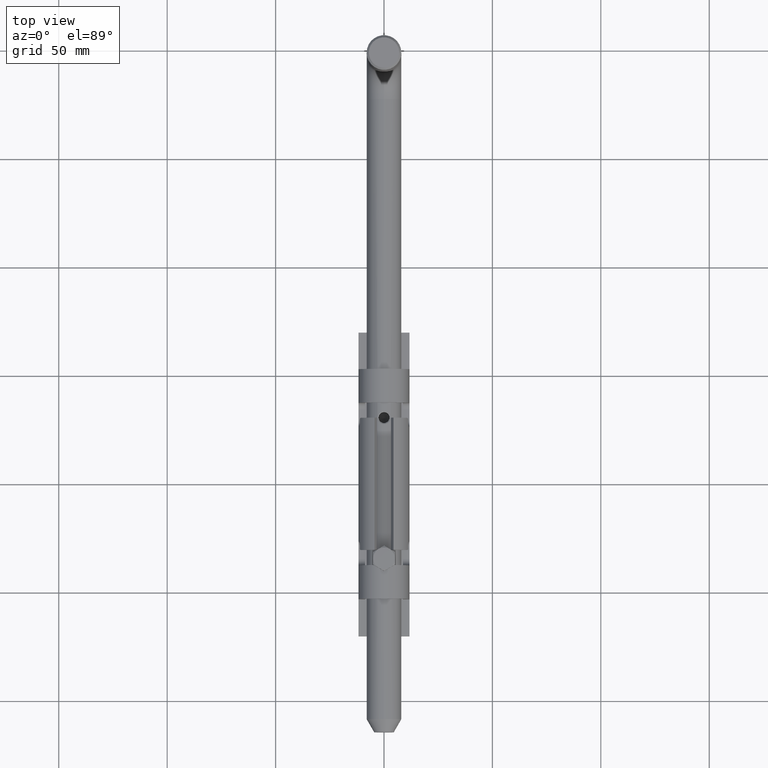
[diagram: clean part render]
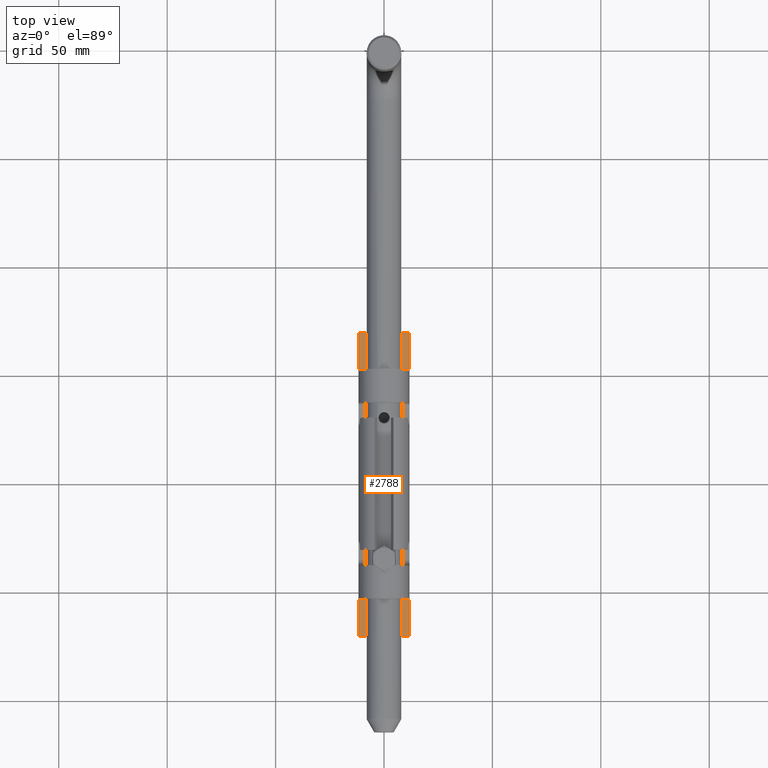
[diagram: same view with one face highlighted and labeled with its STEP entity id]
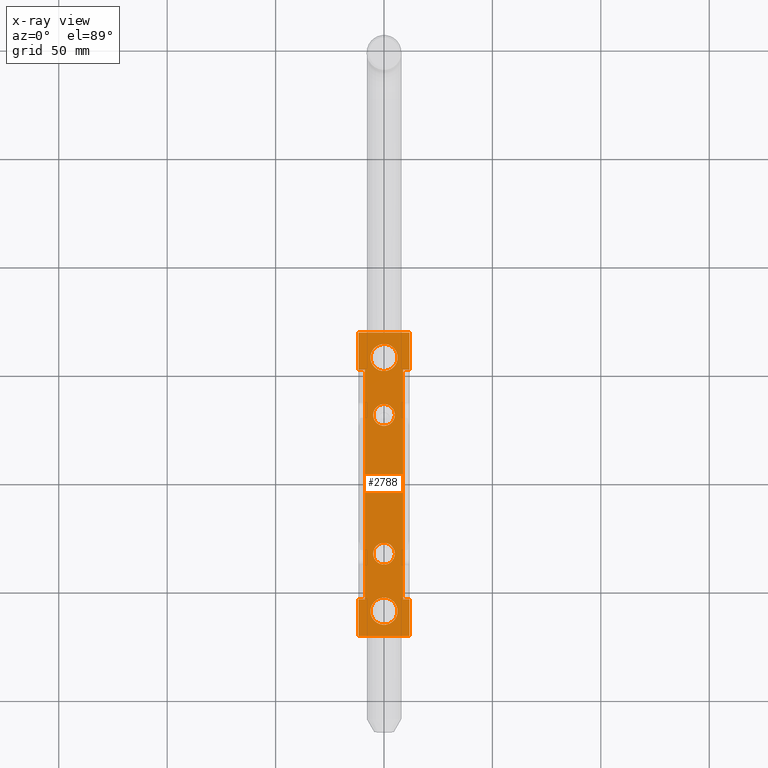
[diagram: x-ray of the same camera — body ghosted, the highlighted face saturated]
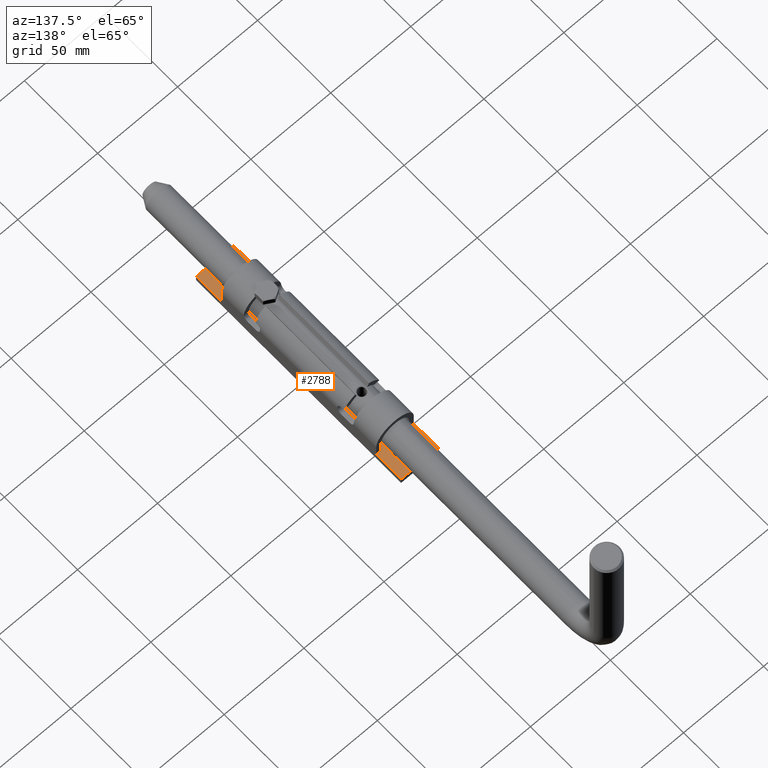
[diagram: same view with one face highlighted and labeled with its STEP entity id]
A machine part, top view. The second image highlights one B-rep face of the part: STEP entity #2788.
The next image is the same camera in x-ray: the body ghosted, the highlighted face saturated — about 0% of this face is hidden behind the body in this view.
A second angle (auxiliary view) of the same face is appended — the face is thin or edge-on in the first view.
In plain terms, the highlighted planar face has unit normal (0, 0, 1).
Its self-contained STEP definition (entity closure, byte-faithful):
#36 = VERTEX_POINT ( 'NONE', #11404 ) ;
#194 = CARTESIAN_POINT ( 'NONE',  ( 8.749999999999994671, -53.00000000000000000, 2.000000000000001776 ) ) ;
#560 = DIRECTION ( 'NONE',  ( 0.000000000000000000, 1.000000000000000000, 0.000000000000000000 ) ) ;
#983 = VECTOR ( 'NONE', #14760, 1000.000000000000000 ) ;
#1285 = CARTESIAN_POINT ( 'NONE',  ( -8.750000000000007105, -53.00000000000000000, 2.000000000000001776 ) ) ;
#1510 = DIRECTION ( 'NONE',  ( 0.000000000000000000, -1.000000000000000000, 0.000000000000000000 ) ) ;
#1623 = CIRCLE ( 'NONE', #12839, 5.000000000000030198 ) ;
#1718 = VERTEX_POINT ( 'NONE', #1285 ) ;
#1848 = VECTOR ( 'NONE', #6295, 1000.000000000000000 ) ;
#1854 = VECTOR ( 'NONE', #12934, 1000.000000000000000 ) ;
#2197 = CARTESIAN_POINT ( 'NONE',  ( 11.74999999999999112, 70.00000000000000000, 2.000000000000001776 ) ) ;
#2201 = ORIENTED_EDGE ( 'NONE', *, *, #12070, .T. ) ;
#2304 = CARTESIAN_POINT ( 'NONE',  ( -11.75000000000000888, 70.00000000000000000, 2.000000000000001776 ) ) ;
#2343 = ORIENTED_EDGE ( 'NONE', *, *, #2805, .T. ) ;
#2444 = CARTESIAN_POINT ( 'NONE',  ( 11.74999999999999112, -53.00000000000000000, 2.000000000000001776 ) ) ;
#2455 = LINE ( 'NONE', #11531, #15110 ) ;
#2461 = ORIENTED_EDGE ( 'NONE', *, *, #6005, .T. ) ;
#2559 = CARTESIAN_POINT ( 'NONE',  ( 11.74999999999999112, 70.00000000000000000, 2.000000000000001776 ) ) ;
#2739 = CARTESIAN_POINT ( 'NONE',  ( 0.000000000000000000, -53.00000000000000000, 2.000000000000001776 ) ) ;
#2788 = ADVANCED_FACE ( 'NONE', ( #12100, #13412, #16661, #17349, #12970 ), #16040, .T. ) ;
#2805 = EDGE_CURVE ( 'NONE', #4483, #10566, #12314, .T. ) ;
#2928 = CARTESIAN_POINT ( 'NONE',  ( -11.74999999999999289, -52.99999999999999289, 2.000000000000001776 ) ) ;
#3028 = EDGE_CURVE ( 'NONE', #36, #36, #11673, .T. ) ;
#3138 = CARTESIAN_POINT ( 'NONE',  ( -11.75000000000000888, 70.00000000000000000, 2.000000000000001776 ) ) ;
#3208 = CARTESIAN_POINT ( 'NONE',  ( 0.000000000000000000, -32.00000000000000000, 2.000000000000001776 ) ) ;
#3248 = VERTEX_POINT ( 'NONE', #2444 ) ;
#3311 = CARTESIAN_POINT ( 'NONE',  ( 0.000000000000000000, 58.50000000000000000, 2.000000000000001776 ) ) ;
#3669 = VERTEX_POINT ( 'NONE', #5210 ) ;
#3835 = CARTESIAN_POINT ( 'NONE',  ( 11.74999999999999112, 53.00000000000000000, 2.000000000000001776 ) ) ;
#3844 = DIRECTION ( 'NONE',  ( -1.239088197126290570E-16, 1.000000000000000000, -0.000000000000000000 ) ) ;
#4056 = VERTEX_POINT ( 'NONE', #15525 ) ;
#4132 = ORIENTED_EDGE ( 'NONE', *, *, #10936, .F. ) ;
#4362 = CARTESIAN_POINT ( 'NONE',  ( -8.750000000000007105, 0.000000000000000000, 2.000000000000001776 ) ) ;
#4378 = CARTESIAN_POINT ( 'NONE',  ( 5.000000000000030198, -32.00000000000000000, 2.000000000000001776 ) ) ;
#4466 = ORIENTED_EDGE ( 'NONE', *, *, #16712, .T. ) ;
#4469 = VECTOR ( 'NONE', #560, 1000.000000000000000 ) ;
#4483 = VERTEX_POINT ( 'NONE', #15691 ) ;
#4595 = DIRECTION ( 'NONE',  ( 0.000000000000000000, -0.000000000000000000, -1.000000000000000000 ) ) ;
#4706 = DIRECTION ( 'NONE',  ( -0.000000000000000000, -0.000000000000000000, 1.000000000000000000 ) ) ;
#4847 = CIRCLE ( 'NONE', #15006, 6.250000000000000000 ) ;
#5013 = DIRECTION ( 'NONE',  ( -1.000000000000000000, 0.000000000000000000, -0.000000000000000000 ) ) ;
#5021 = EDGE_CURVE ( 'NONE', #14688, #6884, #2455, .T. ) ;
#5069 = CARTESIAN_POINT ( 'NONE',  ( 0.000000000000000000, -53.00000000000000000, 2.000000000000001776 ) ) ;
#5084 = LINE ( 'NONE', #2559, #5684 ) ;
#5155 = LINE ( 'NONE', #5069, #11263 ) ;
#5164 = CARTESIAN_POINT ( 'NONE',  ( 0.000000000000000000, 53.00000000000000000, 2.000000000000001776 ) ) ;
#5210 = CARTESIAN_POINT ( 'NONE',  ( -11.75000000000000888, 70.00000000000000000, 2.000000000000001776 ) ) ;
#5249 = EDGE_CURVE ( 'NONE', #3669, #6884, #13365, .T. ) ;
#5373 = ORIENTED_EDGE ( 'NONE', *, *, #5249, .T. ) ;
#5505 = ORIENTED_EDGE ( 'NONE', *, *, #12267, .T. ) ;
#5684 = VECTOR ( 'NONE', #3844, 1000.000000000000000 ) ;
#5694 = VERTEX_POINT ( 'NONE', #9807 ) ;
#5989 = VECTOR ( 'NONE', #16333, 1000.000000000000000 ) ;
#6005 = EDGE_CURVE ( 'NONE', #16690, #4483, #7181, .T. ) ;
#6068 = VERTEX_POINT ( 'NONE', #10825 ) ;
#6117 = DIRECTION ( 'NONE',  ( -1.000000000000000000, 0.000000000000000000, -0.000000000000000000 ) ) ;
#6295 = DIRECTION ( 'NONE',  ( 1.000000000000000000, 0.000000000000000000, 0.000000000000000000 ) ) ;
#6346 = VERTEX_POINT ( 'NONE', #4378 ) ;
#6565 = CARTESIAN_POINT ( 'NONE',  ( -8.750000000000007105, 53.00000000000000000, 2.000000000000001776 ) ) ;
#6610 = ORIENTED_EDGE ( 'NONE', *, *, #12932, .T. ) ;
#6884 = VERTEX_POINT ( 'NONE', #14454 ) ;
#7031 = CARTESIAN_POINT ( 'NONE',  ( 8.749999999999991118, 0.000000000000000000, 2.000000000000001776 ) ) ;
#7181 = LINE ( 'NONE', #2304, #13556 ) ;
#7369 = ORIENTED_EDGE ( 'NONE', *, *, #14086, .F. ) ;
#7375 = DIRECTION ( 'NONE',  ( 1.000000000000000000, 0.000000000000000000, 0.000000000000000000 ) ) ;
#7423 = DIRECTION ( 'NONE',  ( -1.000000000000000000, -0.000000000000000000, -0.000000000000000000 ) ) ;
#7584 = EDGE_CURVE ( 'NONE', #17630, #4056, #16467, .T. ) ;
#7644 = CARTESIAN_POINT ( 'NONE',  ( 0.000000000000000000, 0.000000000000000000, 2.000000000000001776 ) ) ;
#7706 = DIRECTION ( 'NONE',  ( -0.000000000000000000, 0.000000000000000000, 1.000000000000000000 ) ) ;
#7739 = VERTEX_POINT ( 'NONE', #3835 ) ;
#8060 = ORIENTED_EDGE ( 'NONE', *, *, #7584, .T. ) ;
#8107 = EDGE_CURVE ( 'NONE', #7739, #6068, #13829, .T. ) ;
#8164 = VECTOR ( 'NONE', #1510, 1000.000000000000000 ) ;
#8265 = DIRECTION ( 'NONE',  ( 1.239088197126290570E-16, -1.000000000000000000, 0.000000000000000000 ) ) ;
#8411 = AXIS2_PLACEMENT_3D ( 'NONE', #12577, #10011, #9883 ) ;
#8429 = EDGE_LOOP ( 'NONE', ( #8778 ) ) ;
#8778 = ORIENTED_EDGE ( 'NONE', *, *, #16645, .T. ) ;
#8945 = CARTESIAN_POINT ( 'NONE',  ( -11.74999999999999112, -70.00000000000000000, 2.000000000000001776 ) ) ;
#9624 = CARTESIAN_POINT ( 'NONE',  ( -11.75000000000000888, 70.00000000000000000, 2.000000000000001776 ) ) ;
#9706 = AXIS2_PLACEMENT_3D ( 'NONE', #7644, #7706, #17437 ) ;
#9750 = EDGE_LOOP ( 'NONE', ( #17621 ) ) ;
#9807 = CARTESIAN_POINT ( 'NONE',  ( 6.250000000000000000, 58.50000000000000000, 2.000000000000001776 ) ) ;
#9883 = DIRECTION ( 'NONE',  ( 1.000000000000000000, 0.000000000000000000, 0.000000000000000000 ) ) ;
#10011 = DIRECTION ( 'NONE',  ( -0.000000000000000000, -0.000000000000000000, 1.000000000000000000 ) ) ;
#10566 = VERTEX_POINT ( 'NONE', #12230 ) ;
#10612 = LINE ( 'NONE', #5164, #5989 ) ;
#10807 = LINE ( 'NONE', #4362, #8164 ) ;
#10825 = CARTESIAN_POINT ( 'NONE',  ( 11.74999999999999112, 70.00000000000000000, 2.000000000000001776 ) ) ;
#10936 = EDGE_CURVE ( 'NONE', #5694, #5694, #4847, .T. ) ;
#11070 = EDGE_CURVE ( 'NONE', #10566, #3248, #5084, .T. ) ;
#11205 = CARTESIAN_POINT ( 'NONE',  ( 0.000000000000000000, 32.00000000000000000, 2.000000000000001776 ) ) ;
#11263 = VECTOR ( 'NONE', #5013, 1000.000000000000000 ) ;
#11323 = ORIENTED_EDGE ( 'NONE', *, *, #11070, .T. ) ;
#11404 = CARTESIAN_POINT ( 'NONE',  ( 6.250000000000000000, -58.50000000000000000, 2.000000000000001776 ) ) ;
#11488 = CIRCLE ( 'NONE', #12101, 5.000000000000030198 ) ;
#11531 = CARTESIAN_POINT ( 'NONE',  ( 0.000000000000000000, 53.00000000000000000, 2.000000000000001776 ) ) ;
#11673 = CIRCLE ( 'NONE', #8411, 6.250000000000000000 ) ;
#11856 = VERTEX_POINT ( 'NONE', #12748 ) ;
#12070 = EDGE_CURVE ( 'NONE', #6068, #3669, #15643, .T. ) ;
#12100 = FACE_BOUND ( 'NONE', #16837, .T. ) ;
#12101 = AXIS2_PLACEMENT_3D ( 'NONE', #3208, #4595, #7375 ) ;
#12230 = CARTESIAN_POINT ( 'NONE',  ( 11.75000000000000888, -70.00000000000000000, 2.000000000000001776 ) ) ;
#12267 = EDGE_CURVE ( 'NONE', #1718, #16690, #5155, .T. ) ;
#12314 = LINE ( 'NONE', #8945, #1848 ) ;
#12577 = CARTESIAN_POINT ( 'NONE',  ( 0.000000000000000000, -58.50000000000000000, 2.000000000000001776 ) ) ;
#12615 = EDGE_CURVE ( 'NONE', #14688, #1718, #10807, .T. ) ;
#12748 = CARTESIAN_POINT ( 'NONE',  ( 5.000000000000030198, 32.00000000000000000, 2.000000000000001776 ) ) ;
#12839 = AXIS2_PLACEMENT_3D ( 'NONE', #11205, #13893, #13953 ) ;
#12932 = EDGE_CURVE ( 'NONE', #6346, #6346, #11488, .T. ) ;
#12934 = DIRECTION ( 'NONE',  ( -1.000000000000000000, 0.000000000000000000, -0.000000000000000000 ) ) ;
#12970 = FACE_OUTER_BOUND ( 'NONE', #13951, .T. ) ;
#13361 = ORIENTED_EDGE ( 'NONE', *, *, #8107, .T. ) ;
#13365 = LINE ( 'NONE', #9624, #16604 ) ;
#13412 = FACE_BOUND ( 'NONE', #8429, .T. ) ;
#13463 = DIRECTION ( 'NONE',  ( 1.239088197126290570E-16, -1.000000000000000000, 0.000000000000000000 ) ) ;
#13556 = VECTOR ( 'NONE', #13463, 1000.000000000000000 ) ;
#13829 = LINE ( 'NONE', #2197, #983 ) ;
#13893 = DIRECTION ( 'NONE',  ( 0.000000000000000000, -0.000000000000000000, -1.000000000000000000 ) ) ;
#13951 = EDGE_LOOP ( 'NONE', ( #7369, #13361, #2201, #5373, #15936, #16744, #5505, #2461, #2343, #11323, #4466, #8060 ) ) ;
#13953 = DIRECTION ( 'NONE',  ( 1.000000000000000000, 0.000000000000000000, 0.000000000000000000 ) ) ;
#14085 = VECTOR ( 'NONE', #7423, 1000.000000000000000 ) ;
#14086 = EDGE_CURVE ( 'NONE', #7739, #4056, #10612, .T. ) ;
#14454 = CARTESIAN_POINT ( 'NONE',  ( -11.75000000000000888, 53.00000000000000000, 2.000000000000001776 ) ) ;
#14688 = VERTEX_POINT ( 'NONE', #6565 ) ;
#14760 = DIRECTION ( 'NONE',  ( -1.239088197126290570E-16, 1.000000000000000000, -0.000000000000000000 ) ) ;
#15006 = AXIS2_PLACEMENT_3D ( 'NONE', #3311, #4706, #15887 ) ;
#15110 = VECTOR ( 'NONE', #6117, 1000.000000000000000 ) ;
#15128 = LINE ( 'NONE', #2739, #1854 ) ;
#15525 = CARTESIAN_POINT ( 'NONE',  ( 8.749999999999991118, 53.00000000000000000, 2.000000000000001776 ) ) ;
#15643 = LINE ( 'NONE', #3138, #14085 ) ;
#15691 = CARTESIAN_POINT ( 'NONE',  ( -11.74999999999999112, -70.00000000000000000, 2.000000000000001776 ) ) ;
#15887 = DIRECTION ( 'NONE',  ( 1.000000000000000000, 0.000000000000000000, 0.000000000000000000 ) ) ;
#15936 = ORIENTED_EDGE ( 'NONE', *, *, #5021, .F. ) ;
#16040 = PLANE ( 'NONE',  #9706 ) ;
#16324 = EDGE_LOOP ( 'NONE', ( #4132 ) ) ;
#16333 = DIRECTION ( 'NONE',  ( -1.000000000000000000, 0.000000000000000000, -0.000000000000000000 ) ) ;
#16467 = LINE ( 'NONE', #7031, #4469 ) ;
#16604 = VECTOR ( 'NONE', #8265, 1000.000000000000000 ) ;
#16645 = EDGE_CURVE ( 'NONE', #11856, #11856, #1623, .T. ) ;
#16661 = FACE_BOUND ( 'NONE', #16324, .T. ) ;
#16690 = VERTEX_POINT ( 'NONE', #2928 ) ;
#16712 = EDGE_CURVE ( 'NONE', #3248, #17630, #15128, .T. ) ;
#16744 = ORIENTED_EDGE ( 'NONE', *, *, #12615, .T. ) ;
#16837 = EDGE_LOOP ( 'NONE', ( #6610 ) ) ;
#17349 = FACE_BOUND ( 'NONE', #9750, .T. ) ;
#17437 = DIRECTION ( 'NONE',  ( 1.000000000000000000, 0.000000000000000000, 0.000000000000000000 ) ) ;
#17621 = ORIENTED_EDGE ( 'NONE', *, *, #3028, .F. ) ;
#17630 = VERTEX_POINT ( 'NONE', #194 ) ;